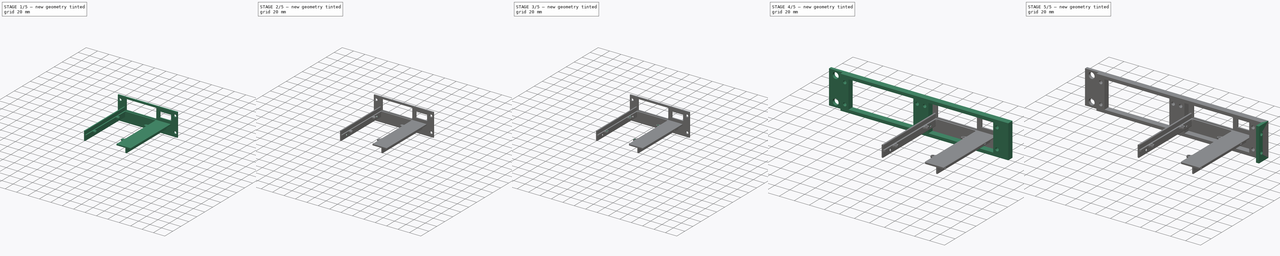
[diagram: build sequence overview — one tinted view per stage of 5, left to right]
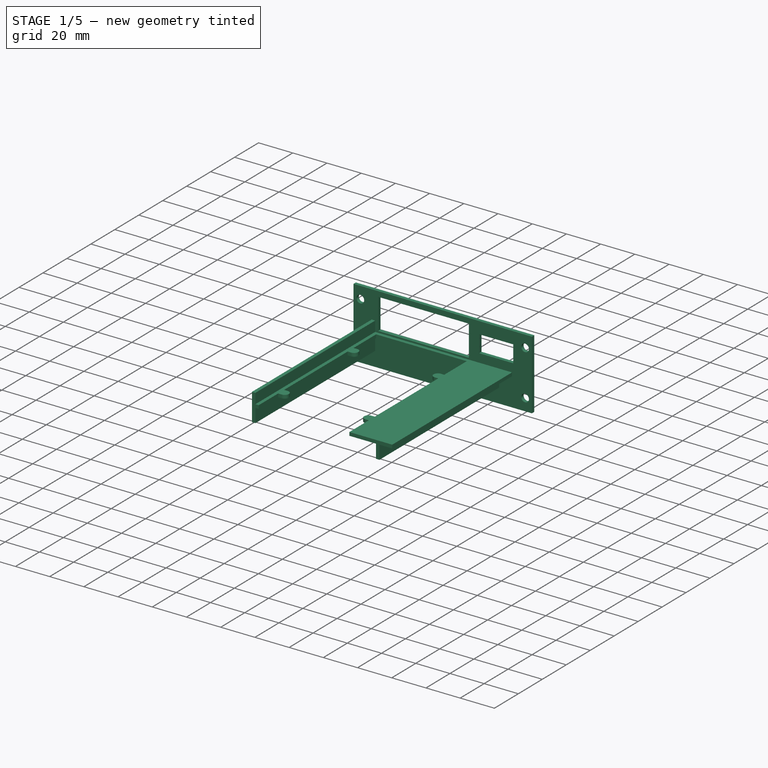
[diagram: stage 1 of 5 — iso view after this stage's code; geometry added in this stage tinted green]
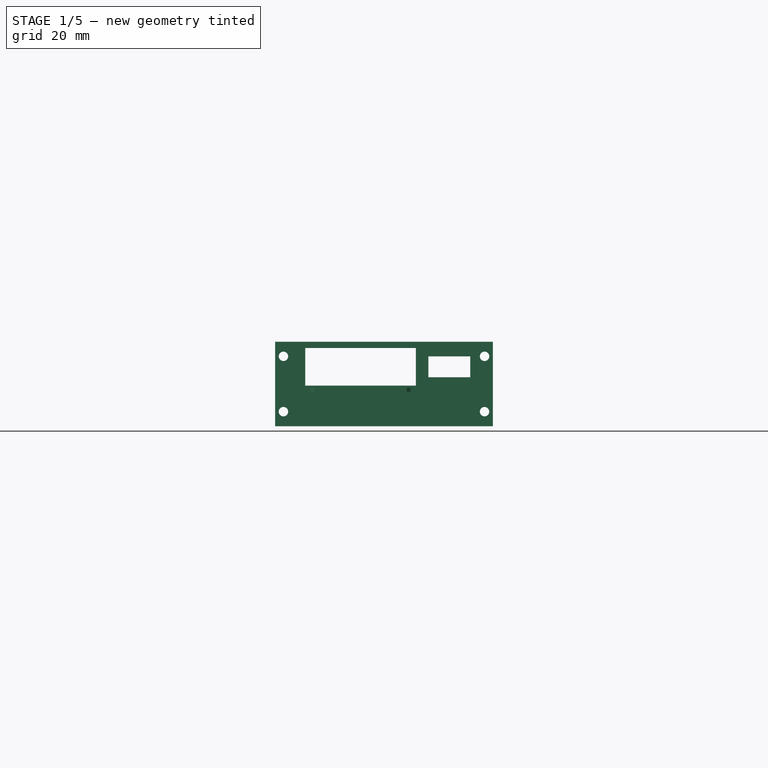
[diagram: stage 1 of 5 — front view after this stage's code; geometry added in this stage tinted green]
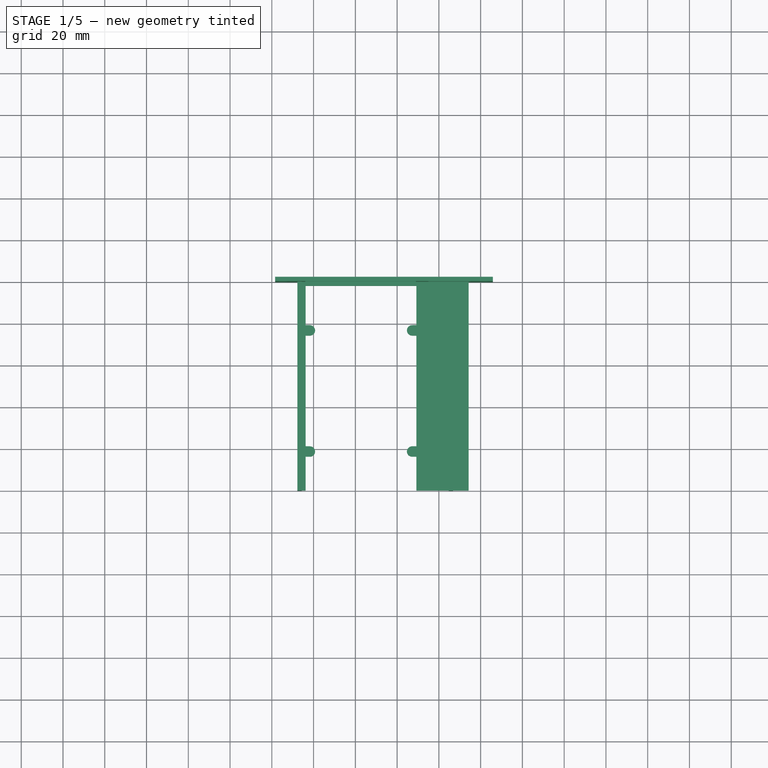
[diagram: stage 1 of 5 — top view after this stage's code; geometry added in this stage tinted green]
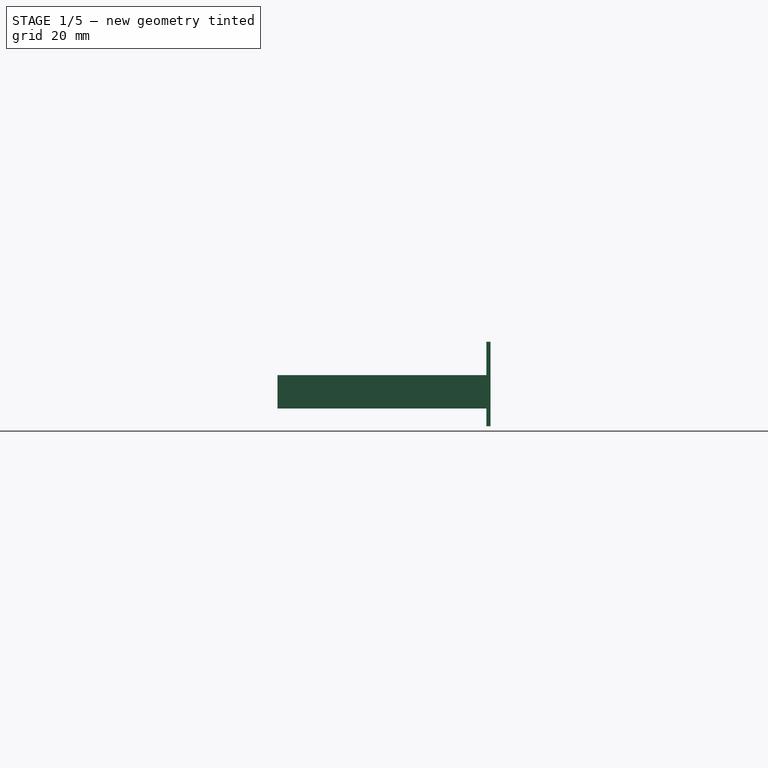
[diagram: stage 1 of 5 — right view after this stage's code; geometry added in this stage tinted green]
FCSTD DOCUMENT  (FreeCAD 1.0R39109 (Git))
Label: RpiAndDiskRackMountV3
License: All rights reserved
LicenseURL: http://en.wikipedia.org/wiki/All_rights_reserved
objects: Sketcher::SketchObject×13, PartDesign::Pocket×9, PartDesign::Pad×4, PartDesign::Body×2, PartDesign::Fillet×2
note: 73 computed .brp shape members not serialized (recipe doc carries the construction recipe); baked Part::Feature solids carry a one-line shape summary decoded from their .brp

FEATURE [Sketcher::SketchObject] Sketch020  label="PiKVMFrontPlateSketch"
  ArcFitTolerance = 0
  AttachmentSupport = -> [XZ_Plane003]
  FullyConstrained = true
  MakeInternals = false
  MapMode = 5
  Placement = pos=(0,0,0) rot=(1,0,0;1.5708rad)
  expr: Constraints[32] = <<MainSketch>>.Constraints.unitSkrewWidth
  expr: Constraints[34] = <<MainSketch>>.Constraints.unitSkrewWidth + 8 mm
  sketch-geometry (21):
    g0: LineSegment StartX=1.57 StartY=-20.25 StartZ=0 EndX=105.87 EndY=-20.25 EndZ=0
    g1: LineSegment StartX=105.87 StartY=-20.25 StartZ=0 EndX=105.87 EndY=20.25 EndZ=0
    g2: LineSegment StartX=105.87 StartY=20.25 StartZ=0 EndX=1.57 EndY=20.25 EndZ=0
    g3: LineSegment StartX=1.57 StartY=20.25 StartZ=0 EndX=1.57 EndY=-20.25 EndZ=0
    g4: Circle CenterX=5.57 CenterY=13.25 CenterZ=0 NormalX=0 NormalY=0 NormalZ=1 AngleXU=0 Radius=2.25
    g5: Circle CenterX=5.57 CenterY=-13.25 CenterZ=0 NormalX=0 NormalY=0 NormalZ=1 AngleXU=0 Radius=2.25
    g6: Circle CenterX=101.87 CenterY=-13.25 CenterZ=0 NormalX=0 NormalY=0 NormalZ=1 AngleXU=0 Radius=2.25
    g7: Circle CenterX=101.87 CenterY=13.25 CenterZ=0 NormalX=0 NormalY=0 NormalZ=1 AngleXU=0 Radius=2.25
    g8: GeomPoint [constr] X=53.72 Y=20.25 Z=0
    g9: GeomPoint [constr] X=53.72 Y=13.25 Z=0
    g10: LineSegment StartX=16 StartY=17.25 StartZ=0 EndX=16 EndY=-0.75 EndZ=0
    g11: LineSegment StartX=16 StartY=-0.75 StartZ=0 EndX=69 EndY=-0.75 EndZ=0
    g12: LineSegment StartX=69 StartY=-0.75 StartZ=0 EndX=69 EndY=17.25 EndZ=0
    g13: LineSegment StartX=69 StartY=17.25 StartZ=0 EndX=16 EndY=17.25 EndZ=0
    g14: GeomPoint [constr] X=53.72 Y=8.25 Z=0
    g15: GeomPoint X=42.5 Y=8.25 Z=0
    g16: LineSegment StartX=75 StartY=3.25 StartZ=0 EndX=95 EndY=3.25 EndZ=0
    g17: LineSegment StartX=95 StartY=3.25 StartZ=0 EndX=95 EndY=13.25 EndZ=0
    g18: LineSegment StartX=95 StartY=13.25 StartZ=0 EndX=75 EndY=13.25 EndZ=0
    g19: LineSegment StartX=75 StartY=13.25 StartZ=0 EndX=75 EndY=3.25 EndZ=0
    g20: GeomPoint X=85 Y=8.25 Z=0
  constraints (51):
    c: Coincident(g0,g1)
    c: Coincident(g1,g2)
    c: Coincident(g2,g3)
    c: Coincident(g3,g0)
    c: Horizontal(g0)
    c: Horizontal(g2)
    c: Vertical(g1)
    c: Symmetric(g2,g0,g-1)
    c: Equal(g4,g5)
    c: Equal(g5,g6)
    c: Equal(g6,g7)
    c: Diameter(g4) = 4.5
    c: DistanceY(g-1,g4) = 13.25
    c: Symmetric(g4,g5,g-1)
    c: Symmetric(g2,g1,g8)
    c: Vertical(g8,g9)
    c: Symmetric(g4,g7,g9)
    c: Horizontal(g7,g4)
    c: Symmetric(g7,g6,g-1)
    c: Coincident(g10,g11)
    c: Coincident(g11,g12)
    c: Coincident(g12,g13)
    c: Coincident(g13,g10)
    c: Horizontal(g11)
    c: Horizontal(g13)
    c: Vertical(g10)
    c: Vertical(g12)
    c: Vertical(g14,g9)
    c: DistanceX(g11,g11) = 53
    c: DistanceY(g12,g12) = 18
    c: DistanceY(g10,g2) = 3
    c: DistanceY(g-1,g14) = 8.25
    c: DistanceX(g4,g7) = 96.3
    c: DistanceX(g-1,g14) = 53.72
    c: DistanceX(g0,g0) = 104.3
    c: DistanceY(g10,g-1) = 0.75
    c: Symmetric(g10,g12,g15)
    c: DistanceX(g-1,g15) = 42.5  'windowOffset'
    c: Coincident(g16,g17)
    c: Coincident(g17,g18)
    c: Coincident(g18,g19)
    c: Coincident(g19,g16)
    c: Horizontal(g16)
    c: Horizontal(g18)
    c: Vertical(g17)
    c: Vertical(g19)
    c: DistanceX(g18,g18) = 20
    c: DistanceY(g19,g19) = 10
    c: DistanceX(g-1,g16) = 75
    c: Symmetric(g18,g16,g20)
    c: Horizontal(g20,g15)
FEATURE [PartDesign::Pad] Pad006  label="PiKVMFrontPlatePad"
  Direction = (0,-1,2e-16)
  Length = 2
  Length2 = 10
  Placement = pos=(0,0,0) rot=(1,0,0;1.5708rad)
  Profile = -> Sketch020
  ReferenceAxis = -> Sketch020 [N_Axis]
  Reversed = true
  Suppressed = false
  Type = 0
FEATURE [Sketcher::SketchObject] Sketch022  label="PiBodySketch"
  ArcFitTolerance = 0
  AttachmentSupport = -> [Pad006]
  ExternalGeometry = -> [Pad006]
  FullyConstrained = true
  MakeInternals = false
  MapMode = 5
  Placement = pos=(0,7e-16,0) rot=(1,0,0;1.5708rad)
  expr: Constraints[1] = 48
  sketch-geometry (13):
    g0: LineSegment StartX=84.75 StartY=-3.75 StartZ=0 EndX=14.25 EndY=-3.75 EndZ=0
    g1: GeomPoint X=48 Y=-3.75 Z=0
    g2: LineSegment StartX=12.25 StartY=-11.75 StartZ=0 EndX=14.25 EndY=-11.75 EndZ=0
    g3: LineSegment StartX=14.25 StartY=-3.75 StartZ=0 EndX=14.25 EndY=-11.75 EndZ=0
    g4: LineSegment StartX=12.25 StartY=-11.75 StartZ=0 EndX=12.25 EndY=4.25 EndZ=0
    g5: LineSegment StartX=94.25 StartY=-1.75 StartZ=0 EndX=94.25 EndY=-3.75 EndZ=0
    g6: LineSegment StartX=94.25 StartY=-3.75 StartZ=0 EndX=86.75 EndY=-3.75 EndZ=0
    g7: LineSegment StartX=86.75 StartY=-3.75 StartZ=0 EndX=86.75 EndY=-11.75 EndZ=0
    g8: LineSegment StartX=86.75 StartY=-11.75 StartZ=0 EndX=84.75 EndY=-11.75 EndZ=0
    g9: LineSegment StartX=84.75 StartY=-11.75 StartZ=0 EndX=84.75 EndY=-3.75 EndZ=0
    g10: LineSegment StartX=14.25 StartY=-1.75 StartZ=0 EndX=94.25 EndY=-1.75 EndZ=0
    g11: LineSegment StartX=14.25 StartY=-1.75 StartZ=0 EndX=14.25 EndY=4.25 EndZ=0
    g12: LineSegment StartX=14.25 StartY=4.25 StartZ=0 EndX=12.25 EndY=4.25 EndZ=0
  constraints (38):
    c: Horizontal(g0)
    c: DistanceX(g-1,g1) = 48
    c: Horizontal(g2)
    c: Coincident(g3,g0)
    c: Coincident(g3,g2)
    c: Vertical(g3)
    c: Coincident(g4,g2)
    c: Vertical(g4)
    c: Coincident(g5,g10)
    c: Coincident(g6,g5)
    c: Coincident(g7,g6)
    c: Vertical(g7)
    c: Horizontal(g8)
    c: Coincident(g9,g0)
    c: Vertical(g9)
    c: Horizontal(g6)
    c: Horizontal(g6,g0)
    c: Vertical(g5)
    c: Coincident(g8,g9)
    c: Coincident(g8,g7)
    c: DistanceX(g8,g8) = 2
    c: DistanceX(g0,g0) = 70.5
    c: DistanceY(g7,g7) = 8
    c: Horizontal(g10)
    c: Vertical(g10,g0)
    c: Coincident(g11,g10)
    c: Vertical(g11)
    c: Coincident(g12,g11)
    c: Horizontal(g12)
    c: Coincident(g4,g12)
    c: DistanceY(g0,g10) = 2
    c: DistanceY(g10,g-3) = 1
    c: DistanceY(g4,g4) = 16
    c: DistanceY(g3,g3) = 8
    c: Horizontal(g1,g0)
    c: DistanceX(g2,g2) = 2
    c: DistanceX(g10,g-3) = 1.75
    c: DistanceX(g10,g10) = 80
FEATURE [PartDesign::Pad] Pad007  label="PiBodyPad"
  BaseFeature = -> Pad006
  Direction = (0,-1,2e-16)
  Length = 100
  Length2 = 10
  Placement = pos=(0,0,0) rot=(1,0,0;1.5708rad)
  Profile = -> Sketch022
  ReferenceAxis = -> Sketch022 [N_Axis]
  Suppressed = false
  Type = 0
FEATURE [Sketcher::SketchObject] Sketch026  label="PiBottemMountSketch"
  ArcFitTolerance = 0
  FullyConstrained = true
  MakeInternals = false
  MapMode = 5
  Placement = pos=(0,-1.3e-15,-5.75) rot=(1,0,0;3.14159rad)
  sketch-geometry (20):
    g0: ArcOfCircle CenterX=67.2 CenterY=23.3 CenterZ=0 NormalX=0 NormalY=0 NormalZ=1 AngleXU=0 Radius=2.5 StartAngle=1.5708 EndAngle=4.71239
    g1: ArcOfCircle CenterX=18.21 CenterY=23.3 CenterZ=0 NormalX=0 NormalY=0 NormalZ=1 AngleXU=0 Radius=2.5 StartAngle=4.71239 EndAngle=7.85398
    g2: ArcOfCircle CenterX=18.21 CenterY=81.3 CenterZ=0 NormalX=0 NormalY=0 NormalZ=1 AngleXU=0 Radius=2.5 StartAngle=4.71239 EndAngle=7.85398
    g3: ArcOfCircle CenterX=67.2 CenterY=81.3 CenterZ=0 NormalX=0 NormalY=0 NormalZ=1 AngleXU=0 Radius=2.5 StartAngle=1.5708 EndAngle=4.71239
    g4: LineSegment StartX=18.21 StartY=83.8 StartZ=0 EndX=16.21 EndY=83.8 EndZ=0
    g5: LineSegment StartX=67.2 StartY=83.8 StartZ=0 EndX=69.2 EndY=83.8 EndZ=0
    g6: LineSegment StartX=18.21 StartY=20.8 StartZ=0 EndX=16.21 EndY=20.8 EndZ=0
    g7: LineSegment StartX=67.2 StartY=20.8 StartZ=0 EndX=69.2 EndY=20.8 EndZ=0
    g8: LineSegment StartX=67.2 StartY=25.8 StartZ=0 EndX=69.2 EndY=25.8 EndZ=0
    g9: LineSegment StartX=18.21 StartY=25.8 StartZ=0 EndX=16.21 EndY=25.8 EndZ=0
    g10: LineSegment StartX=18.21 StartY=78.8 StartZ=0 EndX=16.21 EndY=78.8 EndZ=0
    g11: LineSegment StartX=69.2 StartY=83.8 StartZ=0 EndX=69.2 EndY=103.8 EndZ=0
    g12: LineSegment StartX=16.21 StartY=83.8 StartZ=0 EndX=16.21 EndY=103.8 EndZ=0
    g13: LineSegment StartX=16.21 StartY=103.8 StartZ=0 EndX=69.2 EndY=103.8 EndZ=0
    g14: LineSegment StartX=69.2 StartY=20.8 StartZ=0 EndX=69.2 EndY=2 EndZ=0
    g15: LineSegment StartX=16.21 StartY=20.8 StartZ=0 EndX=16.21 EndY=2 EndZ=0
    g16: LineSegment StartX=16.21 StartY=2 StartZ=0 EndX=69.2 EndY=2 EndZ=0
    g17: LineSegment StartX=67.2 StartY=78.8 StartZ=0 EndX=69.2 EndY=78.8 EndZ=0
    g18: LineSegment StartX=16.21 StartY=78.8 StartZ=0 EndX=16.21 EndY=25.8 EndZ=0
    g19: LineSegment StartX=69.2 StartY=78.8 StartZ=0 EndX=69.2 EndY=25.8 EndZ=0
  constraints (64):
    c: Diameter(g2) = 5
    c: Equal(g2,g0)
    c: Equal(g2,g1)
    c: Equal(g2,g3)
    c: Vertical(g2,g1)
    c: Vertical(g1,g1)
    c: Vertical(g1,g1)
    c: Vertical(g3,g3)
    c: Coincident(g4,g2)
    c: Horizontal(g4)
    c: Coincident(g5,g3)
    c: Horizontal(g5)
    c: Coincident(g6,g1)
    c: Horizontal(g6)
    c: Coincident(g7,g0)
    c: Horizontal(g7)
    c: Coincident(g8,g0)
    c: Coincident(g9,g1)
    c: Horizontal(g9)
    c: Coincident(g10,g2)
    c: Horizontal(g10)
    c: Coincident(g11,g5)
    c: Vertical(g11)
    c: Coincident(g12,g4)
    c: Vertical(g12)
    c: Coincident(g13,g11)
    c: Horizontal(g13)
    c: Coincident(g14,g7)
    c: Vertical(g14)
    c: Coincident(g15,g6)
    c: Vertical(g15)
    c: Coincident(g16,g15)
    c: Coincident(g16,g14)
    c: Horizontal(g16)
    c: Coincident(g17,g3)
    c: Horizontal(g17)
    c: Coincident(g18,g10)
    c: Coincident(g18,g9)
    c: Vertical(g18)
    c: Coincident(g19,g17)
    c: Coincident(g19,g8)
    c: Vertical(g19)
    c: DistanceX(g2,g3) = 48.99
    c: DistanceY(g1,g2) = 58
    c: DistanceX(g-1,g1) = 18.21
    c: DistanceY(g-1,g1) = 23.3
    c: DistanceX(g4,g2) = 2
    c: Horizontal(g8)
    c: Coincident(g13,g12)
    c: DistanceX(g5,g5) = 2
    c: DistanceY(g12,g12) = 20
    c: Vertical(g2,g2)
    c: Vertical(g4,g10)
    c: Vertical(g6,g9)
    c: Vertical(g17,g5)
    c: Vertical(g5,g7)
    c: Vertical(g3,g3)
    c: Horizontal(g1,g0)
    c: Vertical(g3,g0)
    c: Vertical(g2,g1)
    c: Vertical(g0,g0)
    c: Vertical(g0,g0)
    c: Horizontal(g3,g2)
    c: DistanceY(g-1,g15) = 2
FEATURE [PartDesign::Pocket] Pocket011  label="PiBottomMountPocket"
  BaseFeature = -> Pad007
  Direction = (0,0,1)
  Length = 5
  Length2 = 5
  Placement = pos=(0,0,0) rot=(1,0,0;1.5708rad)
  Profile = -> Sketch026
  ReferenceAxis = -> Sketch026 [N_Axis]
  Suppressed = false
  Type = 0
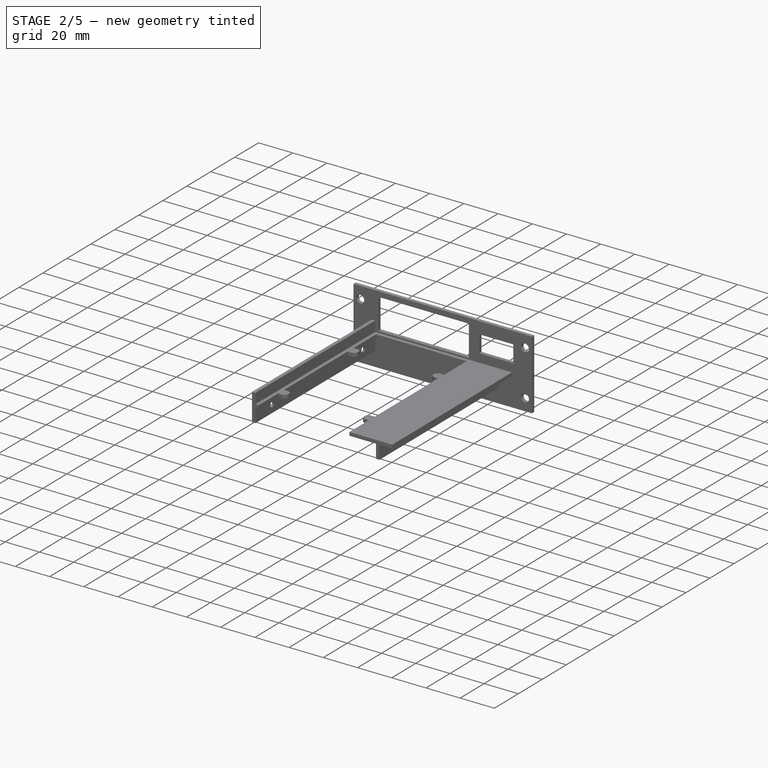
[diagram: stage 2 of 5 — iso view after this stage's code; geometry added in this stage tinted green]
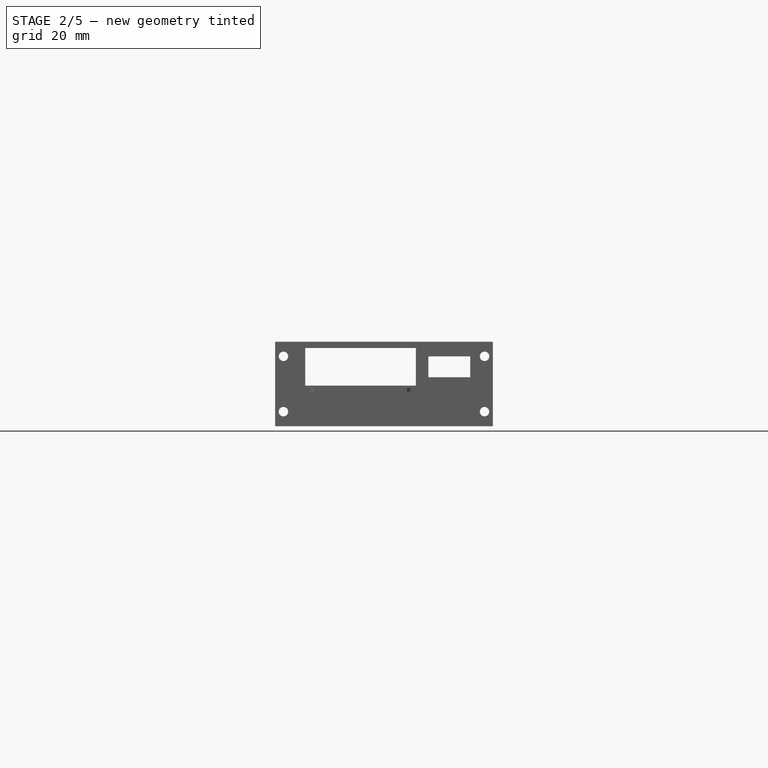
[diagram: stage 2 of 5 — front view after this stage's code; geometry added in this stage tinted green]
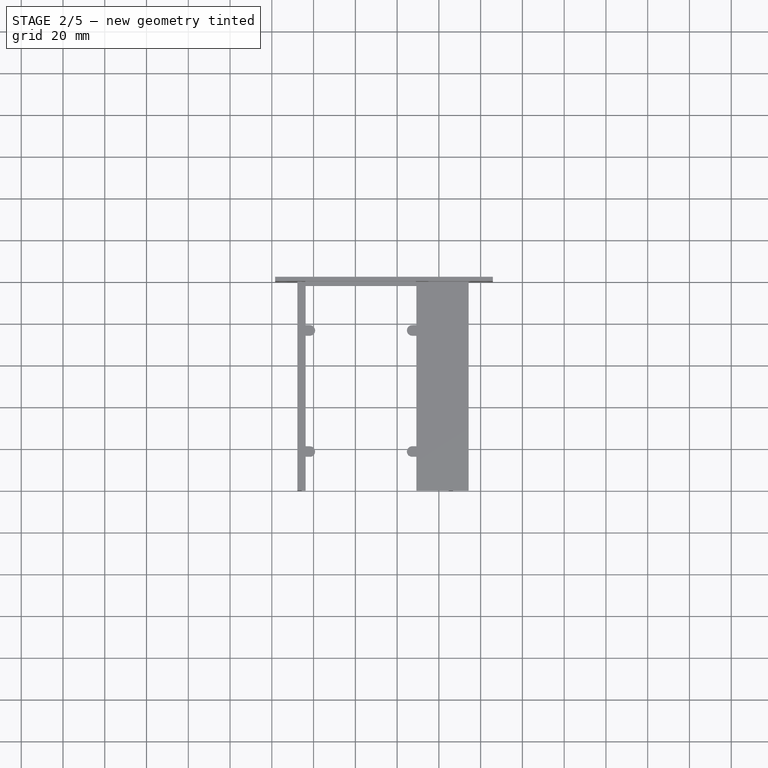
[diagram: stage 2 of 5 — top view after this stage's code; geometry added in this stage tinted green]
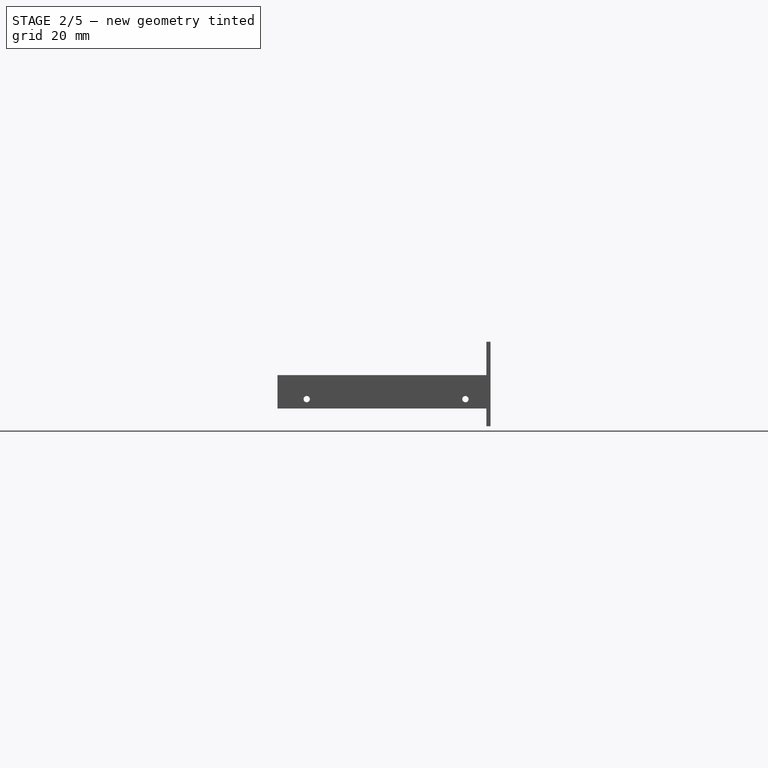
[diagram: stage 2 of 5 — right view after this stage's code; geometry added in this stage tinted green]
FEATURE [PartDesign::Body] Body  label="PiRackHalf"
  AllowCompound = false
  Group = -> [Pad003,Sketch004,Sketch,Pocket,Sketch030,Pad,Sketch031,Pocket013,Sketch032,Pocket014]
  Origin = -> Origin
  Tip = -> Pocket014
FEATURE [Sketcher::SketchObject] Sketch033
  ArcFitTolerance = 1e-06
  FullyConstrained = true
  MakeInternals = false
  MapMode = 5
  Placement = pos=(0,-1.5e-15,-3.75) rot=(0,0,1;3.14159rad)
  sketch-geometry (4):
    g0: LineSegment StartX=-56.135 StartY=100 StartZ=0 EndX=-56.135 EndY=20 EndZ=0
    g1: LineSegment StartX=-56.135 StartY=20 StartZ=0 EndX=-27.145 EndY=20 EndZ=0
    g2: LineSegment StartX=-27.145 StartY=20 StartZ=0 EndX=-27.145 EndY=100 EndZ=0
    g3: LineSegment StartX=-27.145 StartY=100 StartZ=0 EndX=-56.135 EndY=100 EndZ=0
  constraints (12):
    c: Coincident(g0,g1)
    c: Coincident(g1,g2)
    c: Coincident(g2,g3)
    c: Coincident(g3,g0)
    c: Vertical(g0)
    c: Vertical(g2)
    c: Horizontal(g1)
    c: Horizontal(g3)
    c: PointOnObject(g0,g-3)
    c: DistanceX(g-4,g0) = 10
    c: DistanceX(g2,g-5) = 10
    c: DistanceY(g-1,g1) = 20
FEATURE [PartDesign::Pocket] Pocket015
  BaseFeature = -> Pocket011
  Direction = (0,0,-1)
  Length = 5
  Length2 = 5
  Placement = pos=(0,0,0) rot=(1,0,0;1.5708rad)
  Profile = -> Sketch033
  ReferenceAxis = -> Sketch033 [N_Axis]
  Refine = true
  Suppressed = false
  Type = 0
FEATURE [Sketcher::SketchObject] Sketch034
  ArcFitTolerance = 1e-06
  AttachmentSupport = -> [Pocket015]
  FullyConstrained = true
  MakeInternals = false
  MapMode = 5
  Placement = pos=(94.25,0,0) rot=(0.707107,0,0.707107;3.14159rad)
  expr: Constraints[5] = 2 + 3.5
  sketch-geometry (2):
    g0: Circle CenterX=-7.25 CenterY=86 CenterZ=0 NormalX=0 NormalY=0 NormalZ=1 AngleXU=0 Radius=1.5
    g1: Circle CenterX=-7.25 CenterY=10 CenterZ=0 NormalX=0 NormalY=0 NormalZ=1 AngleXU=0 Radius=1.5
  constraints (6):
    c: DistanceY(g1,g0) = 76
    c: DistanceY(g-1,g1) = 10
    c: Equal(g0,g1)
    c: Diameter(g0) = 3
    c: Vertical(g1,g0)
    c: DistanceX(g0,g-3) = 5.5
FEATURE [PartDesign::Pocket] Pocket016
  BaseFeature = -> Pocket015
  Direction = (-1,0,2e-16)
  Length = 5
  Length2 = 5
  Placement = pos=(0,0,0) rot=(1,0,0;1.5708rad)
  Profile = -> Sketch034
  ReferenceAxis = -> Sketch034 [N_Axis]
  Refine = true
  Suppressed = false
  Type = 1
FEATURE [Sketcher::SketchObject] Sketch035
  ArcFitTolerance = 1e-06
  AttachmentSupport = -> [Pocket016]
  ExternalGeometry = -> [Pocket016]
  FullyConstrained = true
  MakeInternals = false
  MapMode = 5
  Placement = pos=(12.25,0,0) rot=(0.707107,0,-0.707107;3.14159rad)
  sketch-geometry (2):
    g0: Circle CenterX=7.25 CenterY=86 CenterZ=0 NormalX=0 NormalY=0 NormalZ=1 AngleXU=0 Radius=3
    g1: Circle CenterX=7.25 CenterY=10 CenterZ=0 NormalX=0 NormalY=0 NormalZ=1 AngleXU=0 Radius=3
  constraints (4):
    c: Coincident(g0,g-3)
    c: Coincident(g1,g-4)
    c: Equal(g1,g0)
    c: Diameter(g1) = 6
FEATURE [PartDesign::Pocket] Pocket017
  BaseFeature = -> Pocket016
  Direction = (1,0,2e-16)
  Length = 1
  Length2 = 5
  Placement = pos=(0,0,0) rot=(1,0,0;1.5708rad)
  Profile = -> Sketch035
  ReferenceAxis = -> Sketch035 [N_Axis]
  Refine = true
  Suppressed = false
  Type = 0
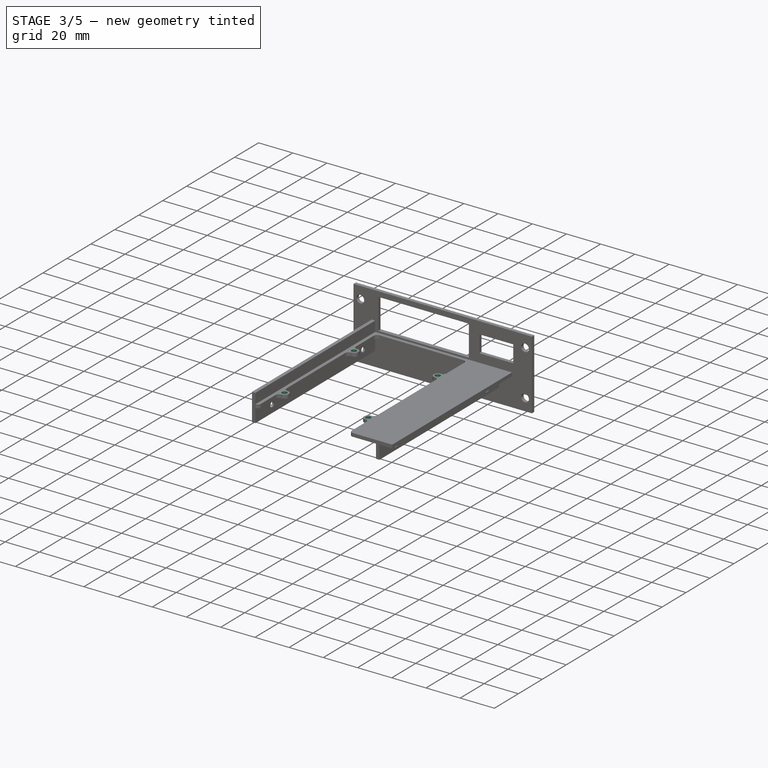
[diagram: stage 3 of 5 — iso view after this stage's code; geometry added in this stage tinted green]
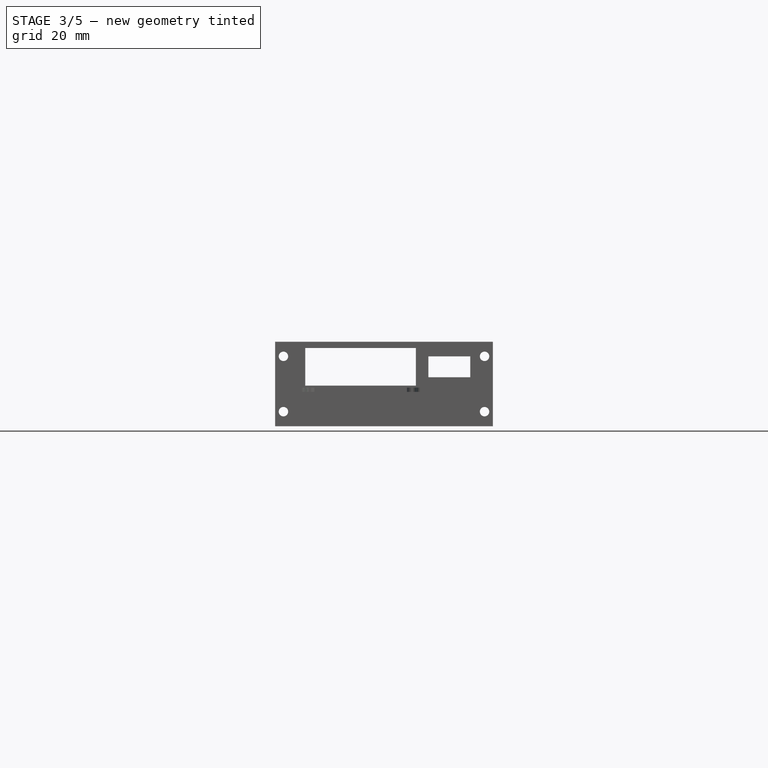
[diagram: stage 3 of 5 — front view after this stage's code; geometry added in this stage tinted green]
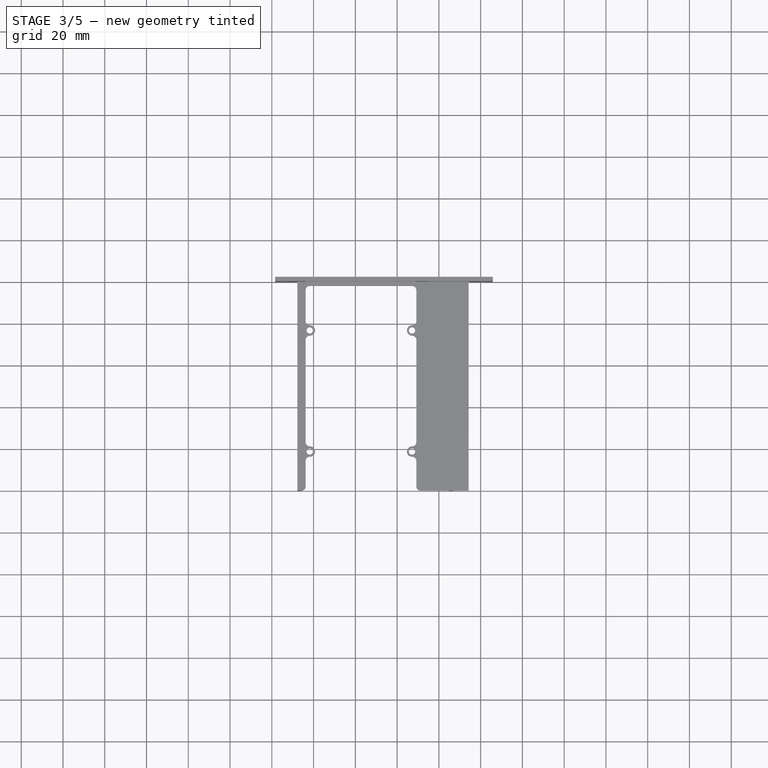
[diagram: stage 3 of 5 — top view after this stage's code; geometry added in this stage tinted green]
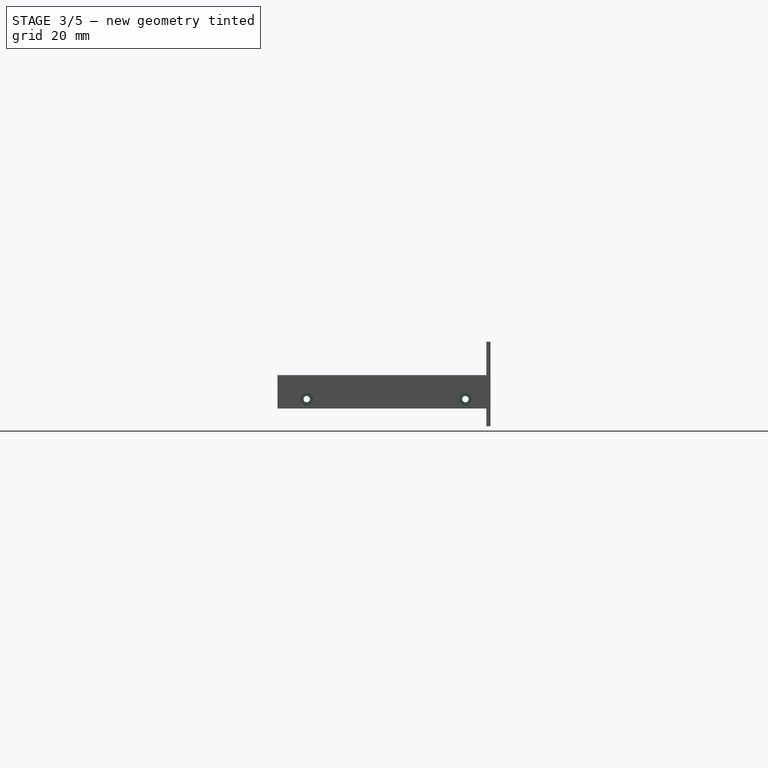
[diagram: stage 3 of 5 — right view after this stage's code; geometry added in this stage tinted green]
FEATURE [Sketcher::SketchObject] Sketch036
  ArcFitTolerance = 1e-06
  AttachmentSupport = -> [Pocket017]
  ExternalGeometry = -> [Pocket017]
  FullyConstrained = true
  MakeInternals = false
  MapMode = 5
  Placement = pos=(86.75,0,0) rot=(0.707107,0,0.707107;3.14159rad)
  sketch-geometry (2):
    g0: Circle CenterX=-7.25 CenterY=86 CenterZ=0 NormalX=0 NormalY=0 NormalZ=1 AngleXU=0 Radius=3
    g1: Circle CenterX=-7.25 CenterY=10 CenterZ=0 NormalX=0 NormalY=0 NormalZ=1 AngleXU=0 Radius=3
  constraints (4):
    c: Coincident(g0,g-3)
    c: Coincident(g1,g-4)
    c: Equal(g1,g0)
    c: Diameter(g1) = 6
FEATURE [PartDesign::Pocket] Pocket018
  BaseFeature = -> Pocket017
  Direction = (-1,0,2e-16)
  Length = 1
  Length2 = 5
  Placement = pos=(0,0,0) rot=(1,0,0;1.5708rad)
  Profile = -> Sketch036
  ReferenceAxis = -> Sketch036 [N_Axis]
  Refine = true
  Suppressed = false
  Type = 0
FEATURE [PartDesign::Pocket] Pocket019
  BaseFeature = -> Pocket018
  Direction = (0,0,-1)
  Length = 2
  Length2 = 5
  Placement = pos=(0,0,0) rot=(1,0,0;1.5708rad)
  Profile = -> Sketch027
  ReferenceAxis = -> Sketch027 [N_Axis]
  Refine = true
  Suppressed = false
  Type = 0
FEATURE [PartDesign::Fillet] Fillet
  Base = -> Pocket019 [Edge143,Edge149,Edge151,Edge144,Edge150,Edge152,Edge157,Edge158,Edge159,Edge160,Edge141,Edge142]
  BaseFeature = -> Pocket019
  Placement = pos=(0,0,0) rot=(1,0,0;1.5708rad)
  Radius = 1.95
  Refine = true
  SupportTransform = false
  Suppressed = false
  UseAllEdges = false
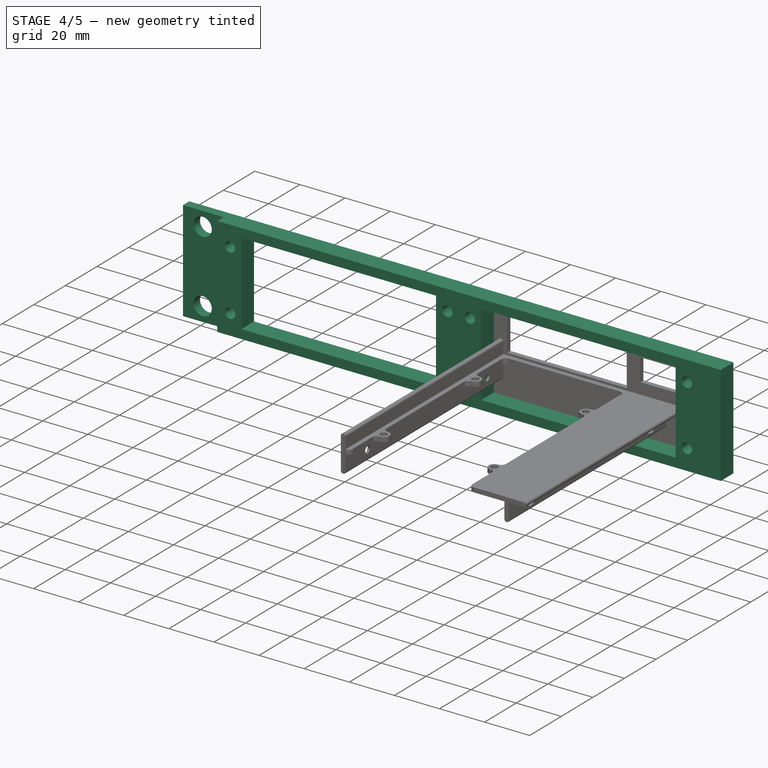
[diagram: stage 4 of 5 — iso view after this stage's code; geometry added in this stage tinted green]
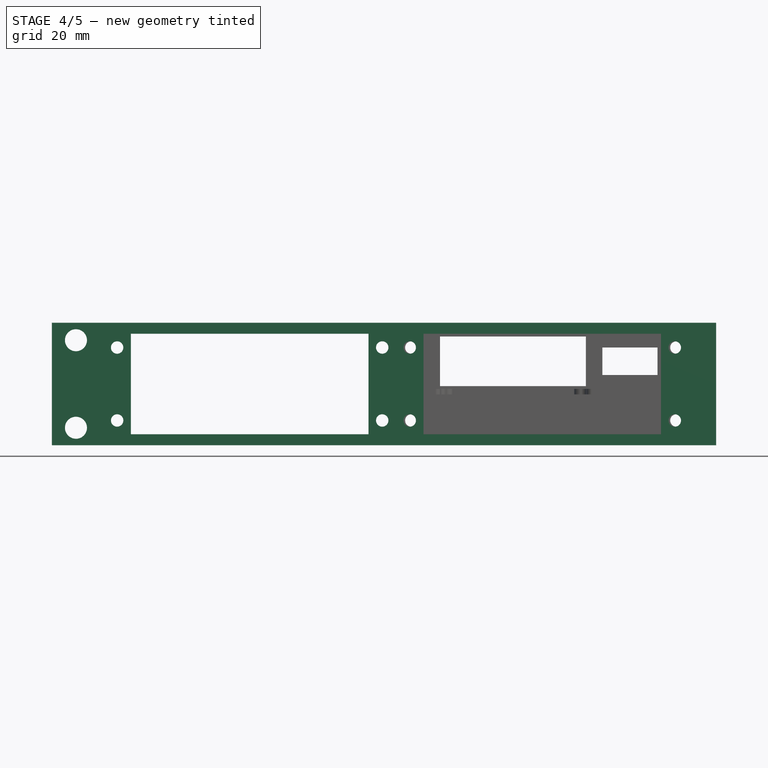
[diagram: stage 4 of 5 — front view after this stage's code; geometry added in this stage tinted green]
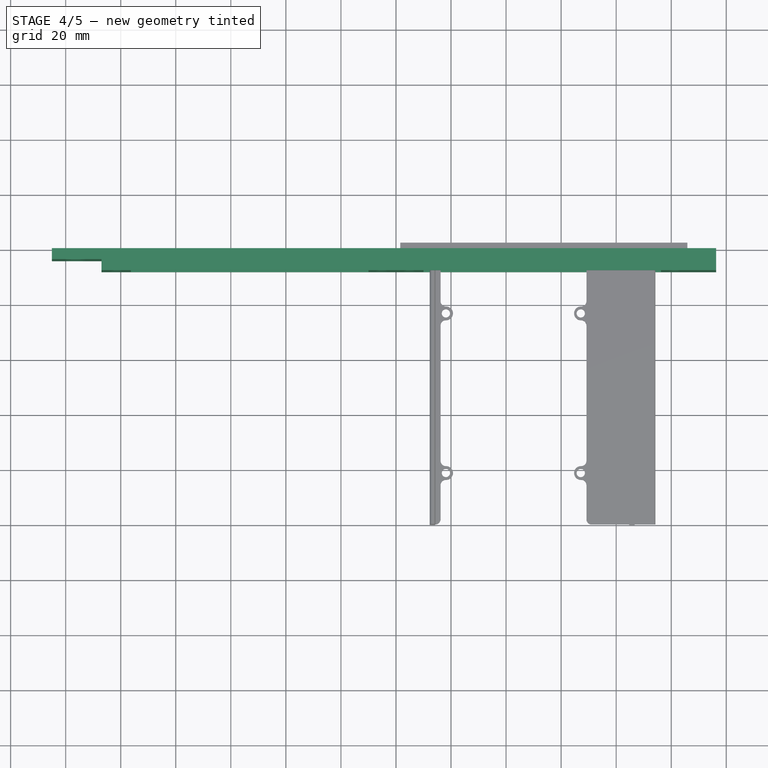
[diagram: stage 4 of 5 — top view after this stage's code; geometry added in this stage tinted green]
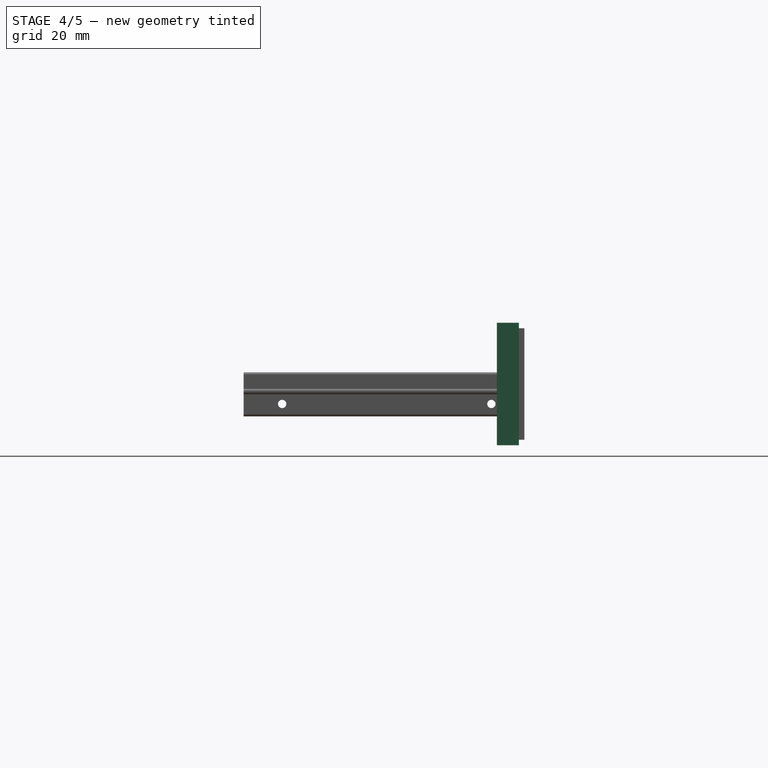
[diagram: stage 4 of 5 — right view after this stage's code; geometry added in this stage tinted green]
FEATURE [Sketcher::SketchObject] Sketch004  label="MainSketch"
  ArcFitTolerance = 0
  AttachmentSupport = -> [XZ_Plane]
  FullyConstrained = true
  MakeInternals = false
  MapMode = 5
  Placement = pos=(0,0,0) rot=(1,0,0;1.5708rad)
  sketch-geometry (22):
    g0: LineSegment StartX=-125 StartY=22.25 StartZ=0 EndX=116.3 EndY=22.25 EndZ=0
    g1: LineSegment StartX=116.3 StartY=22.25 StartZ=0 EndX=116.3 EndY=-22.25 EndZ=0
    g2: LineSegment StartX=116.3 StartY=-22.25 StartZ=0 EndX=-125 EndY=-22.25 EndZ=0
    g3: LineSegment StartX=-125 StartY=-22.25 StartZ=0 EndX=-125 EndY=22.25 EndZ=0
    g4: LineSegment StartX=-96.3 StartY=18.25 StartZ=0 EndX=-10 EndY=18.25 EndZ=0
    g5: LineSegment StartX=-10 StartY=18.25 StartZ=0 EndX=-10 EndY=-18.25 EndZ=0
    g6: LineSegment StartX=-10 StartY=-18.25 StartZ=0 EndX=-96.3 EndY=-18.25 EndZ=0
    g7: LineSegment StartX=-96.3 StartY=-18.25 StartZ=0 EndX=-96.3 EndY=18.25 EndZ=0
    g8: Circle CenterX=-116.26 CenterY=15.9 CenterZ=0 NormalX=0 NormalY=0 NormalZ=1 AngleXU=0 Radius=4
    g9: Circle CenterX=-116.26 CenterY=-15.9 CenterZ=0 NormalX=0 NormalY=0 NormalZ=1 AngleXU=0 Radius=4
    g10: LineSegment StartX=10 StartY=18.25 StartZ=0 EndX=96.3 EndY=18.25 EndZ=0
    g11: LineSegment StartX=96.3 StartY=18.25 StartZ=0 EndX=96.3 EndY=-18.25 EndZ=0
    g12: LineSegment StartX=96.3 StartY=-18.25 StartZ=0 EndX=10 EndY=-18.25 EndZ=0
    g13: LineSegment StartX=10 StartY=-18.25 StartZ=0 EndX=10 EndY=18.25 EndZ=0
    g14: Circle CenterX=-101.3 CenterY=13.25 CenterZ=0 NormalX=0 NormalY=0 NormalZ=1 AngleXU=0 Radius=2.25
    g15: Circle CenterX=-101.3 CenterY=-13.25 CenterZ=0 NormalX=0 NormalY=0 NormalZ=1 AngleXU=0 Radius=2.25
    g16: Circle CenterX=-5 CenterY=-13.25 CenterZ=0 NormalX=0 NormalY=0 NormalZ=1 AngleXU=0 Radius=2.25
    g17: Circle CenterX=-5 CenterY=13.25 CenterZ=0 NormalX=0 NormalY=0 NormalZ=1 AngleXU=0 Radius=2.25
    g18: Circle CenterX=5 CenterY=13.25 CenterZ=0 NormalX=0 NormalY=0 NormalZ=1 AngleXU=0 Radius=2.25
    g19: Circle CenterX=5 CenterY=-13.25 CenterZ=0 NormalX=0 NormalY=0 NormalZ=1 AngleXU=0 Radius=2.25
    g20: Circle CenterX=101.3 CenterY=-13.25 CenterZ=0 NormalX=0 NormalY=0 NormalZ=1 AngleXU=0 Radius=2.25
    g21: Circle CenterX=101.3 CenterY=13.25 CenterZ=0 NormalX=0 NormalY=0 NormalZ=1 AngleXU=0 Radius=2.25
  constraints (62):
    c: Coincident(g0,g1)
    c: Coincident(g1,g2)
    c: Coincident(g2,g3)
    c: Coincident(g3,g0)
    c: Horizontal(g0)
    c: Horizontal(g2)
    c: Vertical(g1)
    c: Coincident(g4,g5)
    c: Coincident(g5,g6)
    c: Coincident(g6,g7)
    c: Coincident(g7,g4)
    c: Horizontal(g6)
    c: Vertical(g7)
    c: Coincident(g10,g11)
    c: Coincident(g11,g12)
    c: Coincident(g12,g13)
    c: Coincident(g13,g10)
    c: Horizontal(g10)
    c: Horizontal(g12)
    c: Vertical(g11)
    c: Symmetric(g4,g5,g-1)
    c: Symmetric(g12,g10,g-1)
    c: Symmetric(g4,g10,g-2)
    c: Equal(g10,g4)
    c: Horizontal(g14,g17)
    c: Horizontal(g17,g18)
    c: Horizontal(g18,g21)
    c: Horizontal(g15,g16)
    c: Horizontal(g16,g19)
    c: Horizontal(g19,g20)
    c: Vertical(g14,g15)
    c: Vertical(g17,g16)
    c: Vertical(g18,g19)
    c: Vertical(g20,g21)
    c: Equal(g19,g18)
    c: Equal(g19,g17)
    c: Equal(g19,g16)
    c: Equal(g19,g15)
    c: Equal(g19,g14)
    c: Equal(g19,g21)
    c: Equal(g19,g20)
    c: Diameter(g19) = 4.5
    c: DistanceY(g17,g4) = 5
    c: DistanceY(g5,g16) = 5
    c: DistanceX(g14,g4) = 5
    c: Symmetric(g0,g2,g-1)
    c: Horizontal(g4,g4)
    c: DistanceY(g11,g11) = 36.5  'window_height'
    c: DistanceY(g1,g1) = 44.5
    c: DistanceX(g8,g0) = 232.56
    c: Symmetric(g9,g8,g-1)
    c: DistanceY(g9,g-1) = 15.9
    c: Equal(g8,g9)
    c: Diameter(g8) = 8
    c: DistanceX(g0,g0) = 241.3
    c: DistanceX(g2,g-1) = 125
    c: DistanceX(g4,g17) = 5
    c: DistanceX(g18,g10) = 5
    c: DistanceX(g10,g21) = 5
    c: DistanceX(g17,g18) = 10
    c: DistanceX(g20,g1) = 15
    c: DistanceX(g14,g17) = 96.3  'unitSkrewWidth'
FEATURE [PartDesign::Pad] Pad003  label="MainPad"
  Direction = (0,-1,2e-16)
  Length = 8
  Length2 = 10
  Placement = pos=(0,0,0) rot=(1,0,0;1.5708rad)
  Profile = -> Sketch004
  ReferenceAxis = -> Sketch004 [N_Axis]
  Suppressed = false
  Type = 0
FEATURE [Sketcher::SketchObject] Sketch  label="RackBrimSketch"
  ArcFitTolerance = 0
  AttachmentOffset = pos=(0,0,8) rot=(0,0,1;0rad)
  AttachmentSupport = -> [XZ_Plane]
  ExternalGeometry = -> [Pad003]
  FullyConstrained = true
  MakeInternals = false
  MapMode = 5
  Placement = pos=(0,-8,1.8e-15) rot=(1,0,0;1.5708rad)
  sketch-geometry (4):
    g0: LineSegment StartX=-125 StartY=22.25 StartZ=0 EndX=-107 EndY=22.25 EndZ=0
    g1: LineSegment StartX=-107 StartY=22.25 StartZ=0 EndX=-107 EndY=-22.25 EndZ=0
    g2: LineSegment StartX=-107 StartY=-22.25 StartZ=0 EndX=-125 EndY=-22.25 EndZ=0
    g3: LineSegment StartX=-125 StartY=-22.25 StartZ=0 EndX=-125 EndY=22.25 EndZ=0
  constraints (11):
    c: Coincident(g0,g1)
    c: Coincident(g1,g2)
    c: Coincident(g2,g3)
    c: Coincident(g3,g0)
    c: Horizontal(g0)
    c: Horizontal(g2)
    c: Vertical(g1)
    c: DistanceY(g3,g3) = 44.5
    c: Symmetric(g0,g2,g-1)
    c: DistanceX(g0,g0) = 18
    c: DistanceX(g0,g-3) = 0
FEATURE [PartDesign::Pocket] Pocket  label="RackBrimPocket"
  BaseFeature = -> Pad003
  Direction = (0,1,-2e-16)
  Length = 4
  Length2 = 5
  Placement = pos=(0,0,0) rot=(1,0,0;1.5708rad)
  Profile = -> Sketch
  ReferenceAxis = -> Sketch [N_Axis]
  Suppressed = false
  Type = 0
FEATURE [PartDesign::Fillet] Fillet001
  Base = -> Fillet [Edge155,Edge158,Edge159,Edge50,Edge173,Edge176,Edge82,Edge7]
  BaseFeature = -> Fillet
  Placement = pos=(0,0,0) rot=(1,0,0;1.5708rad)
  Radius = 0.9
  Refine = true
  SupportTransform = false
  Suppressed = false
  UseAllEdges = false
FEATURE [PartDesign::Body] Body003  label="PiRackShelf"
  AllowCompound = false
  Group = -> [Sketch020,Pad006,Sketch022,Pad007,Sketch026,Pocket011,Sketch027,Sketch033,Pocket015,Sketch034,Pocket016,Sketch035,Pocket017,Sketch036,Pocket018,Pocket019,Fillet,Fillet001]
  Origin = -> Origin003
  Tip = -> Fillet001
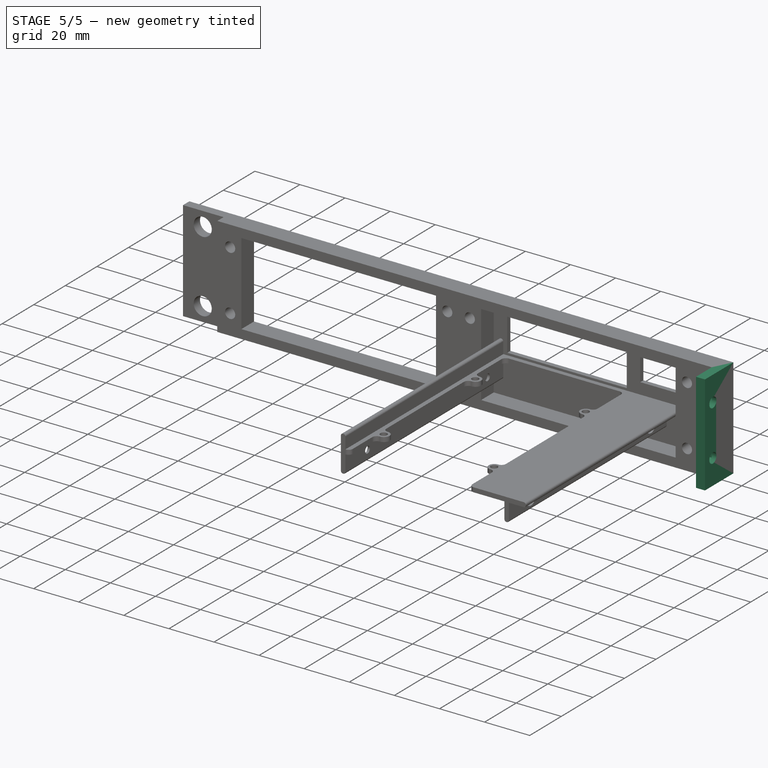
[diagram: stage 5 of 5 — iso view after this stage's code; geometry added in this stage tinted green]
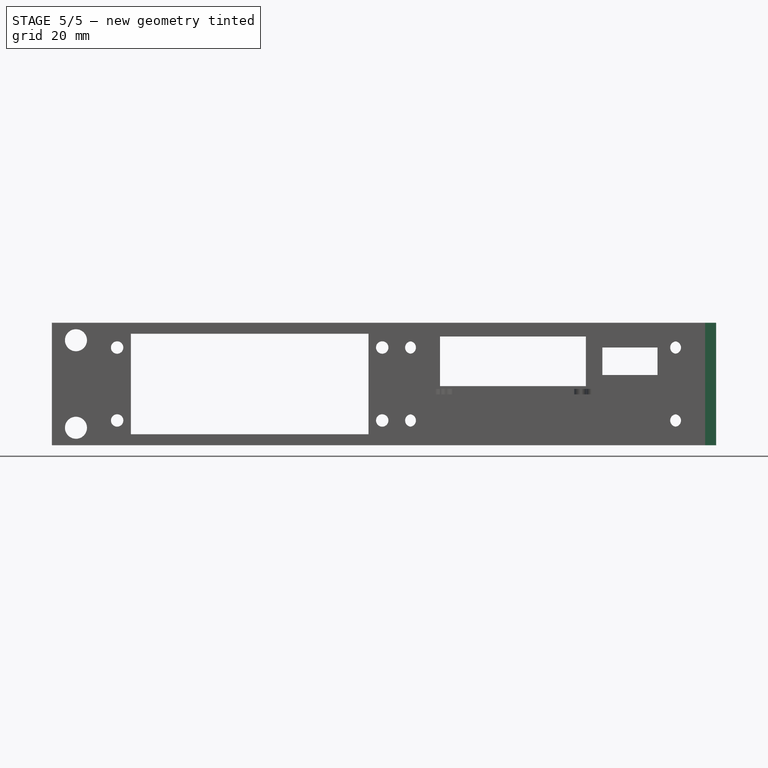
[diagram: stage 5 of 5 — front view after this stage's code; geometry added in this stage tinted green]
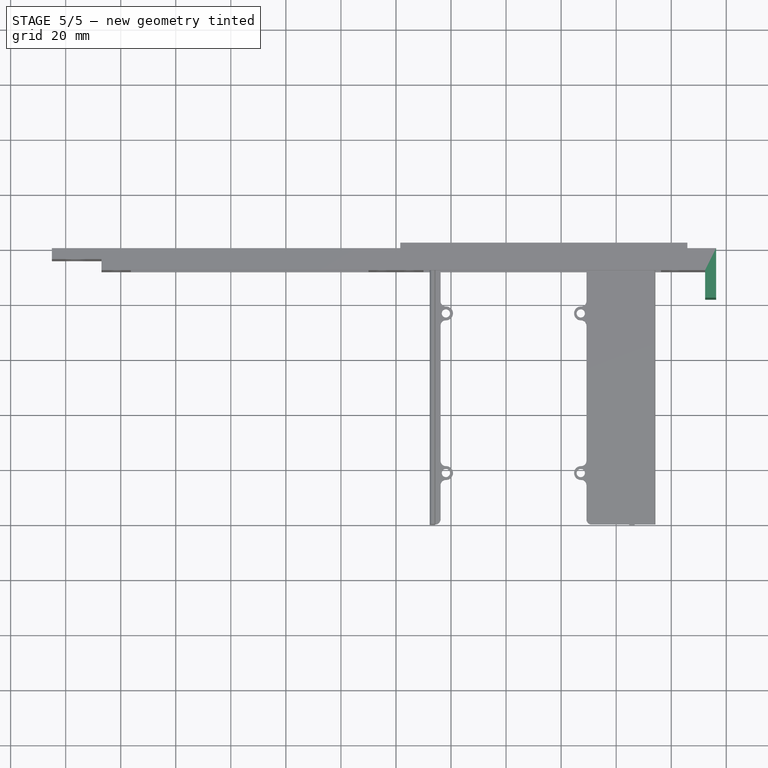
[diagram: stage 5 of 5 — top view after this stage's code; geometry added in this stage tinted green]
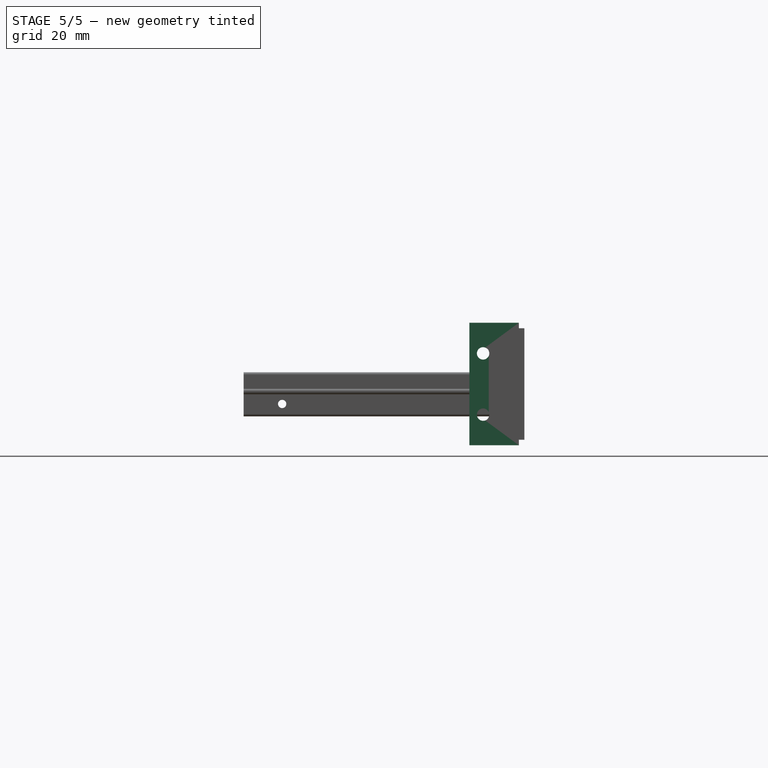
[diagram: stage 5 of 5 — right view after this stage's code; geometry added in this stage tinted green]
FEATURE [Sketcher::SketchObject] Sketch027  label="TopSkrewLipsSketch"
  ArcFitTolerance = 0
  AttachmentSupport = -> [Pocket011]
  FullyConstrained = true
  MakeInternals = false
  MapMode = 5
  Placement = pos=(0,-4e-16,-1.75) rot=(0,0,1;3.14159rad)
  sketch-geometry (4):
    g0: Circle CenterX=-67.135 CenterY=81.3 CenterZ=0 NormalX=0 NormalY=0 NormalZ=1 AngleXU=0 Radius=1.5
    g1: Circle CenterX=-18.145 CenterY=81.3 CenterZ=0 NormalX=0 NormalY=0 NormalZ=1 AngleXU=0 Radius=1.5
    g2: Circle CenterX=-67.135 CenterY=23.3 CenterZ=0 NormalX=0 NormalY=0 NormalZ=1 AngleXU=0 Radius=1.5
    g3: Circle CenterX=-18.145 CenterY=23.3 CenterZ=0 NormalX=0 NormalY=0 NormalZ=1 AngleXU=0 Radius=1.5
  constraints (8):
    c: Equal(g2,g1)
    c: Equal(g2,g0)
    c: Diameter(g2) = 3
    c: Equal(g2,g3)
    c: Coincident(g3,g-6)
    c: Coincident(g1,g-4)
    c: Coincident(g-3,g0)
    c: Coincident(g-5,g2)
FEATURE [Sketcher::SketchObject] Sketch030
  ArcFitTolerance = 1e-06
  AttachmentSupport = -> [Pocket]
  ExternalGeometry = -> [Pocket]
  FullyConstrained = true
  MakeInternals = false
  MapMode = 5
  Placement = pos=(0,-8,0) rot=(1,0,0;1.5708rad)
  sketch-geometry (4):
    g0: LineSegment StartX=116.3 StartY=22.25 StartZ=0 EndX=112.3 EndY=22.25 EndZ=0
    g1: LineSegment StartX=112.3 StartY=22.25 StartZ=0 EndX=112.3 EndY=-22.25 EndZ=0
    g2: LineSegment StartX=112.3 StartY=-22.25 StartZ=0 EndX=116.3 EndY=-22.25 EndZ=0
    g3: LineSegment StartX=116.3 StartY=-22.25 StartZ=0 EndX=116.3 EndY=22.25 EndZ=0
  constraints (11):
    c: Coincident(g0,g1)
    c: Coincident(g1,g2)
    c: Coincident(g2,g3)
    c: Coincident(g3,g0)
    c: Horizontal(g0)
    c: Horizontal(g2)
    c: Vertical(g1)
    c: Vertical(g3)
    c: Coincident(g0,g-3)
    c: DistanceX(g0,g0) = 4
    c: DistanceY(g-3,g2) = 0
FEATURE [PartDesign::Pad] Pad
  BaseFeature = -> Pocket
  Direction = (0,-1,2e-16)
  Length = 10
  Length2 = 10
  Placement = pos=(0,0,0) rot=(1,0,0;1.5708rad)
  Profile = -> Sketch030
  ReferenceAxis = -> Sketch030 [N_Axis]
  Refine = true
  Suppressed = false
  Type = 0
FEATURE [Sketcher::SketchObject] Sketch031
  ArcFitTolerance = 1e-06
  AttachmentSupport = -> [Pad]
  ExternalGeometry = -> [Pad]
  FullyConstrained = true
  MakeInternals = false
  MapMode = 5
  Placement = pos=(112.3,0,0) rot=(0.707107,0,-0.707107;3.14159rad)
  sketch-geometry (10):
    g0: GeomPoint X=0 Y=13 Z=0
    g1: GeomPoint X=-22.25 Y=13 Z=0
    g2: Circle CenterX=-11.125 CenterY=13 CenterZ=0 NormalX=0 NormalY=0 NormalZ=1 AngleXU=0 Radius=3.75
    g3: LineSegment StartX=15.4551 StartY=13 StartZ=0 EndX=13.2901 EndY=16.75 EndZ=0
    g4: LineSegment StartX=13.2901 StartY=16.75 StartZ=0 EndX=8.95994 EndY=16.75 EndZ=0
    g5: LineSegment StartX=8.95994 StartY=16.75 StartZ=0 EndX=6.79487 EndY=13 EndZ=0
    g6: LineSegment StartX=6.79487 StartY=13 StartZ=0 EndX=8.95994 EndY=9.25 EndZ=0
    g7: LineSegment StartX=8.95994 StartY=9.25 StartZ=0 EndX=13.2901 EndY=9.25 EndZ=0
    g8: LineSegment StartX=13.2901 StartY=9.25 StartZ=0 EndX=15.4551 EndY=13 EndZ=0
    g9: Circle [constr] CenterX=11.125 CenterY=13 CenterZ=0 NormalX=0 NormalY=0 NormalZ=1 AngleXU=0 Radius=4.33013
  constraints (21):
    c: PointOnObject(g0,g-2)
    c: Symmetric(g-4,g-3,g1)
    c: Horizontal(g0,g1)
    c: Coincident(g3,g4)
    c: Coincident(g4,g5)
    c: Coincident(g5,g6)
    c: Coincident(g6,g7)
    c: Coincident(g7,g8)
    c: Coincident(g8,g3)
    c: Equal(g3, g4-g8) x5
    c: PointOnObject(g3,g9)
    c: PointOnObject(g4,g9)
    c: PointOnObject(g5,g9)
    c: PointOnObject(g6,g9)
    c: PointOnObject(g7,g9)
    c: PointOnObject(g8,g9)
    c: Horizontal(g4,g3)
    c: Symmetric(g2,g9,g0)
    c: Symmetric(g0,g1,g2)
    c: Diameter(g2) = 7.5
    c: DistanceY(g7,g3) = 7.5
FEATURE [PartDesign::Pocket] Pocket013
  BaseFeature = -> Pad
  Direction = (1,0,2e-16)
  Length = 2
  Length2 = 5
  Placement = pos=(0,0,0) rot=(1,0,0;1.5708rad)
  Profile = -> Sketch031
  ReferenceAxis = -> Sketch031 [N_Axis]
  Refine = true
  Suppressed = false
  Type = 0
FEATURE [Sketcher::SketchObject] Sketch032
  ArcFitTolerance = 1e-06
  AttachmentSupport = -> [Pocket013]
  ExternalGeometry = -> [Pocket013]
  FullyConstrained = true
  MakeInternals = false
  MapMode = 5
  Placement = pos=(112.3,0,0) rot=(0.707107,0,-0.707107;3.14159rad)
  sketch-geometry (2):
    g0: Circle CenterX=-11.125 CenterY=13 CenterZ=0 NormalX=0 NormalY=0 NormalZ=1 AngleXU=0 Radius=2.25
    g1: Circle CenterX=11.125 CenterY=13 CenterZ=0 NormalX=0 NormalY=0 NormalZ=1 AngleXU=0 Radius=2.25
  constraints (4):
    c: Coincident(g0,g-3)
    c: Symmetric(g-4,g-5,g1)
    c: Equal(g0,g1)
    c: Diameter(g0) = 4.5
FEATURE [PartDesign::Pocket] Pocket014
  BaseFeature = -> Pocket013
  Direction = (1,0,2e-16)
  Length = 5
  Length2 = 5
  Placement = pos=(0,0,0) rot=(1,0,0;1.5708rad)
  Profile = -> Sketch032
  ReferenceAxis = -> Sketch032 [N_Axis]
  Refine = true
  Suppressed = false
  Type = 0
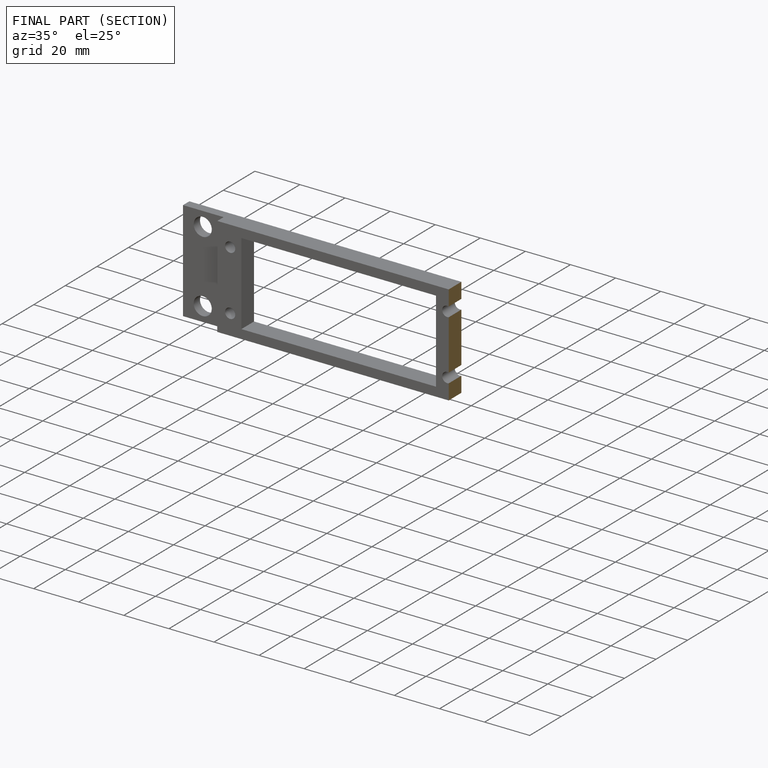
[diagram: finished part — half-section view (interior)]
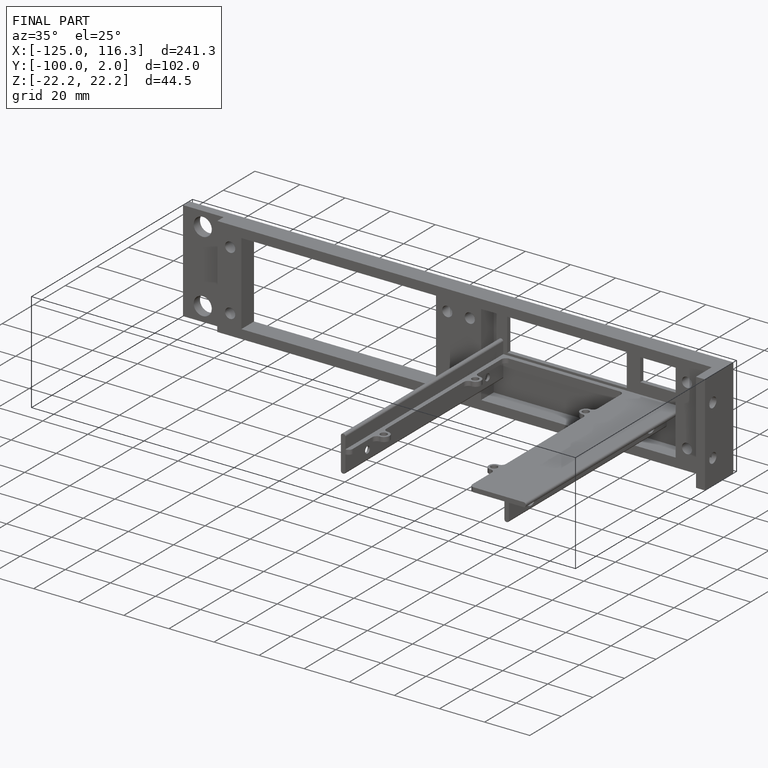
[diagram: finished part — iso view with bounding-box wireframe]
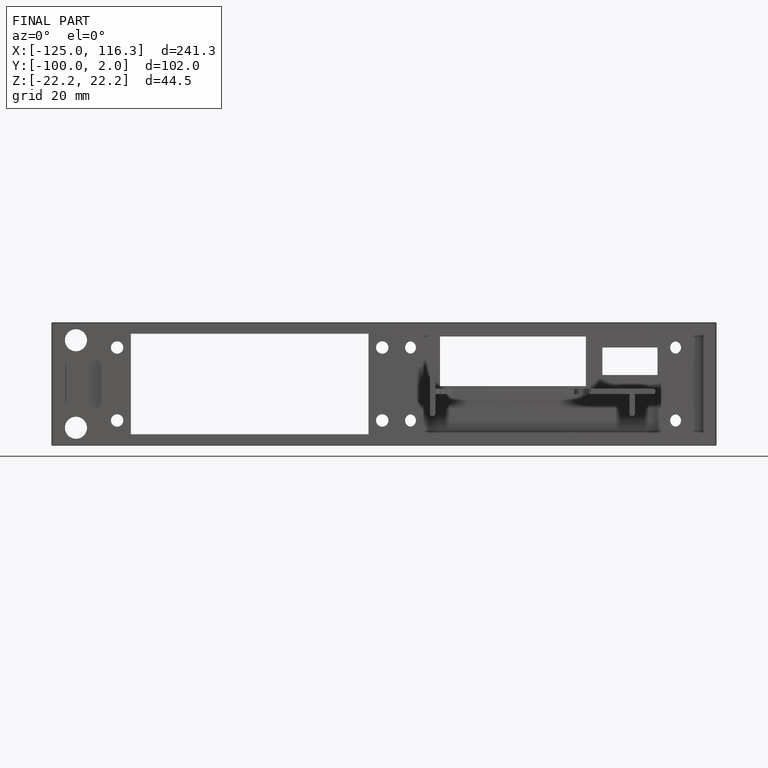
[diagram: finished part — front view with bounding-box wireframe]
